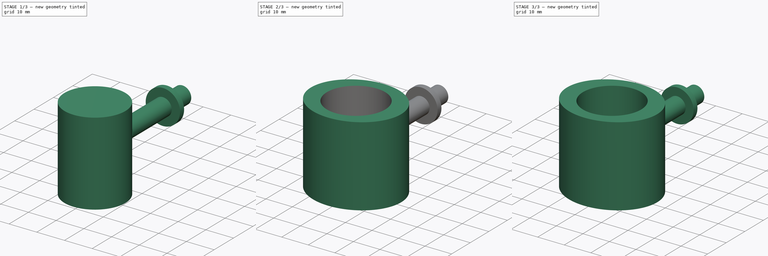
[diagram: build sequence overview — one tinted view per stage of 3, left to right]
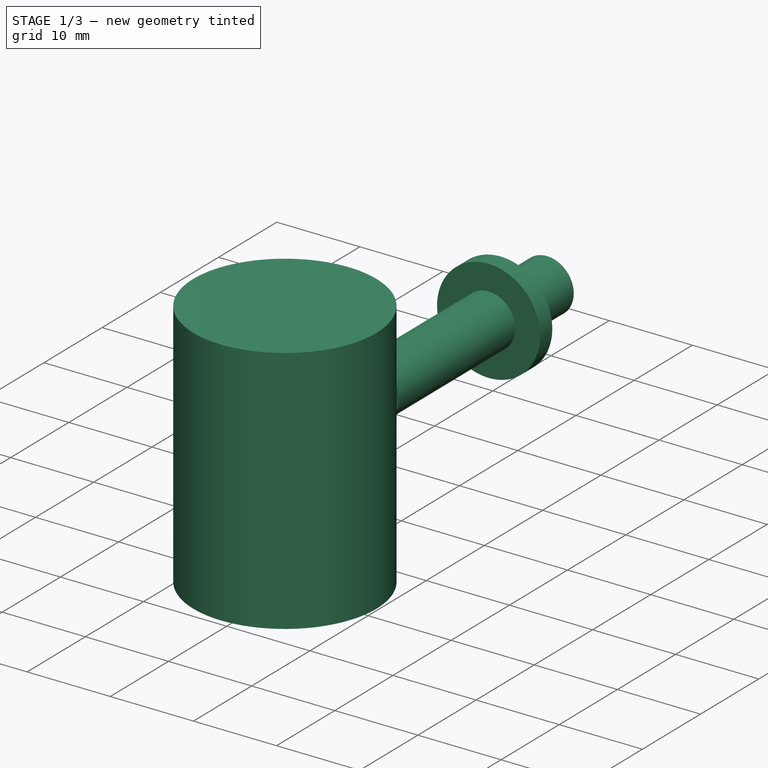
[diagram: stage 1 of 3 — iso view after this stage's code; geometry added in this stage tinted green]
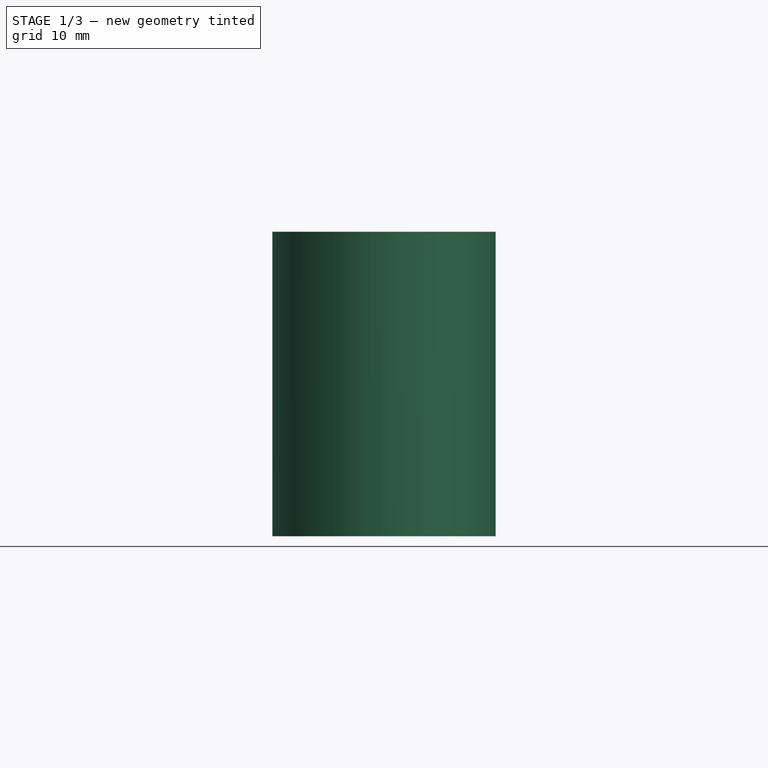
[diagram: stage 1 of 3 — front view after this stage's code; geometry added in this stage tinted green]
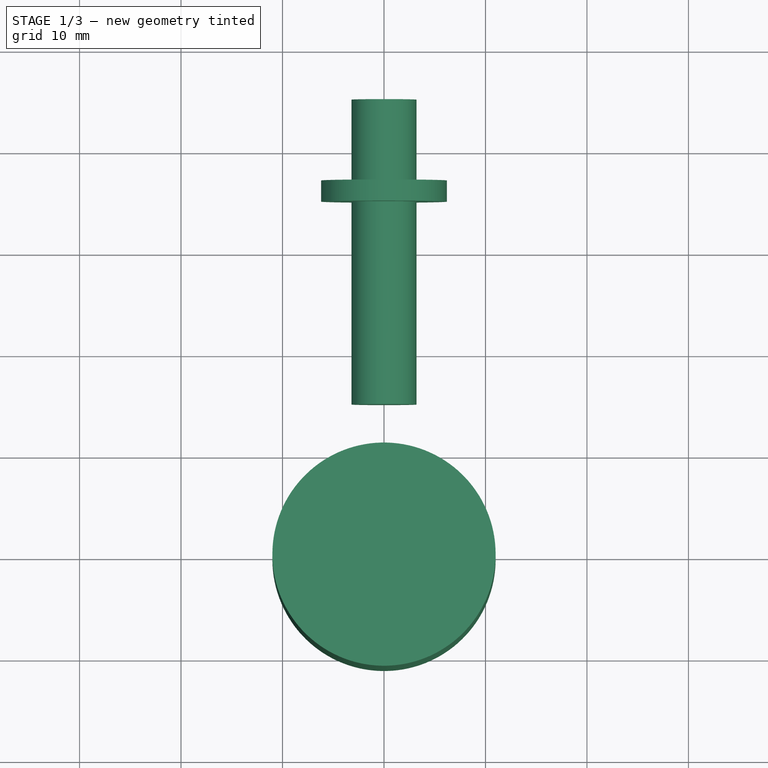
[diagram: stage 1 of 3 — top view after this stage's code; geometry added in this stage tinted green]
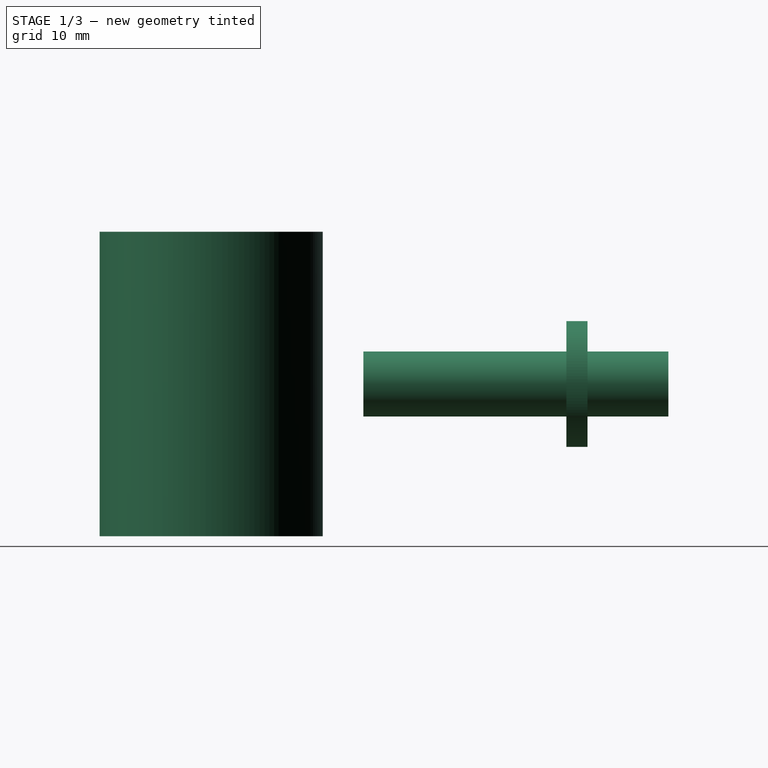
[diagram: stage 1 of 3 — right view after this stage's code; geometry added in this stage tinted green]
FCSTD DOCUMENT  (FreeCAD 0.18.3R)
Label: sidemount
License: All rights reserved
LicenseURL: http://en.wikipedia.org/wiki/All_rights_reserved
objects: Part::Part2DObjectPython×2, Part::Extrusion×2, Part::Cut×1, Sketcher::SketchObject×1, Part::Revolution×1, Part::MultiFuse×1, PartDesign::FeatureBase×1, PartDesign::Body×1
note: 10 computed .brp shape members not serialized (recipe doc carries the construction recipe); baked Part::Feature solids carry a one-line shape summary decoded from their .brp

FEATURE [Part::Extrusion] Extrude001
  Base = -> Circle
  Dir = (0,0,30)
  DirMode = 0
  FaceMakerClass = Part::FaceMakerExtrusion
  LengthFwd = 0
  LengthRev = 0
  Placement = pos=(0,0,0) rot=(0,1,0;3.14159rad)
  Solid = false
  Symmetric = false
FEATURE [Sketcher::SketchObject] Sketch
  MapMode = 5
  Placement = pos=(-15,0,-30) rot=(1,0,0;1.5708rad)
  sketch-geometry (8):
    g0: LineSegment StartX=-20 StartY=11.8 StartZ=0 EndX=0 EndY=11.8 EndZ=0
    g1: LineSegment StartX=-20 StartY=11.8 StartZ=0 EndX=-20 EndY=8.8 EndZ=0
    g2: LineSegment StartX=-20 StartY=8.8 StartZ=0 EndX=-22.0828 EndY=8.8 EndZ=0
    g3: LineSegment StartX=-30.0519 StartY=11.8 StartZ=0 EndX=-22.0828 EndY=11.8 EndZ=0
    g4: LineSegment StartX=-22.0828 StartY=11.8 StartZ=0 EndX=-22.0828 EndY=8.8 EndZ=0
    g5: LineSegment StartX=0 StartY=11.8 StartZ=0 EndX=0 EndY=15 EndZ=0
    g6: LineSegment StartX=0 StartY=15 StartZ=0 EndX=-30.0519 EndY=15 EndZ=0
    g7: LineSegment StartX=-30.0519 StartY=15 StartZ=0 EndX=-30.0519 EndY=11.8 EndZ=0
  constraints (22):
    c: Horizontal(g0)
    c: DistanceY(g-1,g0) = 11.8
    c: Distance(g0) = 20
    c: Vertical(g1)
    c: Coincident(g1,g2)
    c: Horizontal(g2)
    c: Coincident(g1,g0)
    c: Distance(g1) = 3
    c: Horizontal(g3)
    c: Coincident(g3,g4)
    c: Coincident(g4,g2)
    c: Vertical(g4)
    c: Equal(g1,g4)
    c: Coincident(g0,g5)
    c: PointOnObject(g5,g-2)
    c: Vertical(g5)
    c: Coincident(g5,g6)
    c: Horizontal(g6)
    c: Coincident(g6,g7)
    c: Coincident(g7,g3)
    c: Vertical(g7)
    c: DistanceY(g0,g5) = 3.2
FEATURE [Part::Revolution] Revolve
  Angle = 360
  Axis = (-1,0,0)
  AxisLink = -> Sketch [Edge3]
  Base = (-45.0519,3.3e-15,-15)
  FaceMakerClass = Part::FaceMakerBullseye
  Placement = pos=(0,0,0) rot=(0,0,1;4.71239rad)
  Solid = true
  Source = -> Sketch
  Symmetric = false
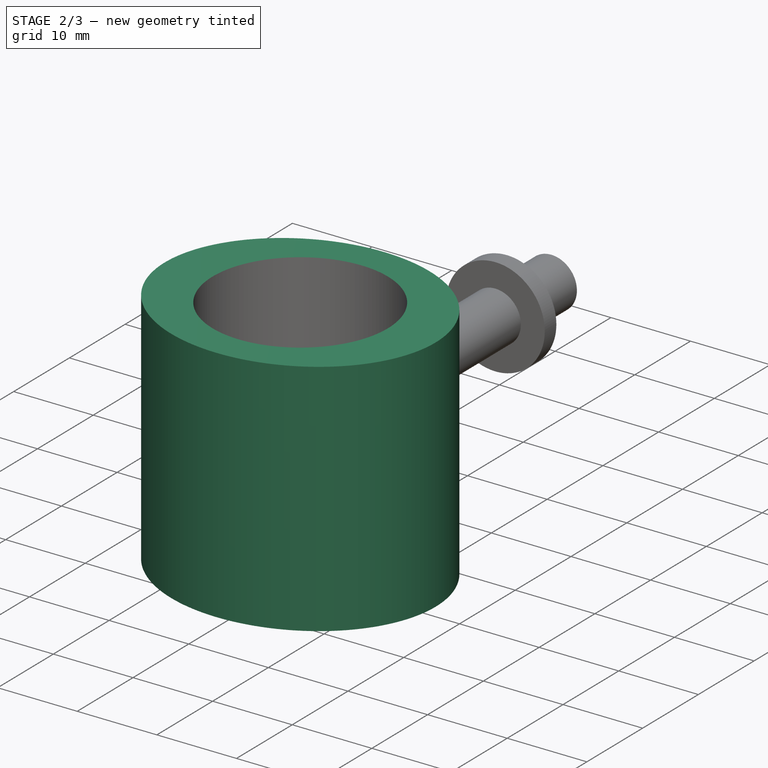
[diagram: stage 2 of 3 — iso view after this stage's code; geometry added in this stage tinted green]
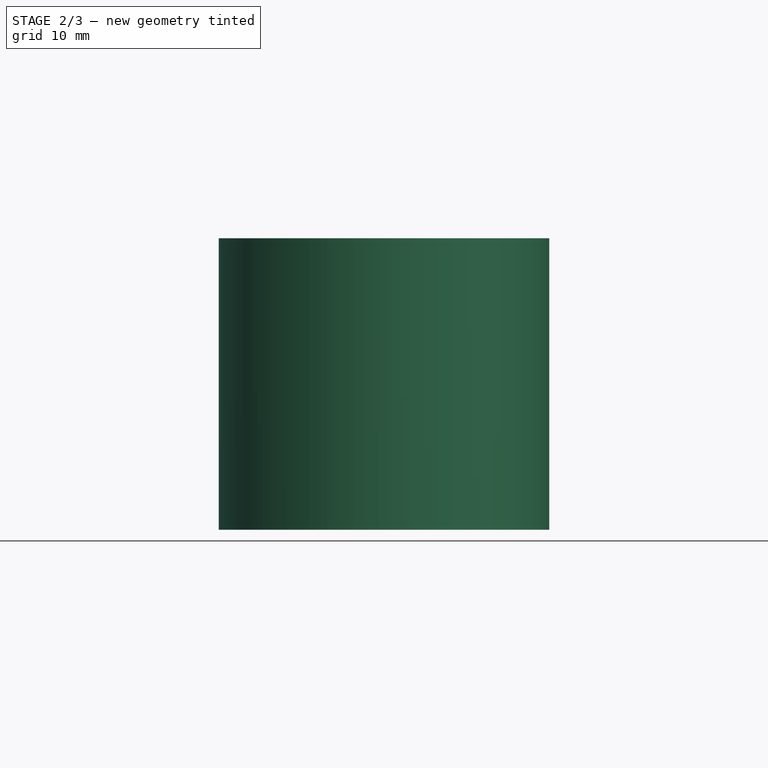
[diagram: stage 2 of 3 — front view after this stage's code; geometry added in this stage tinted green]
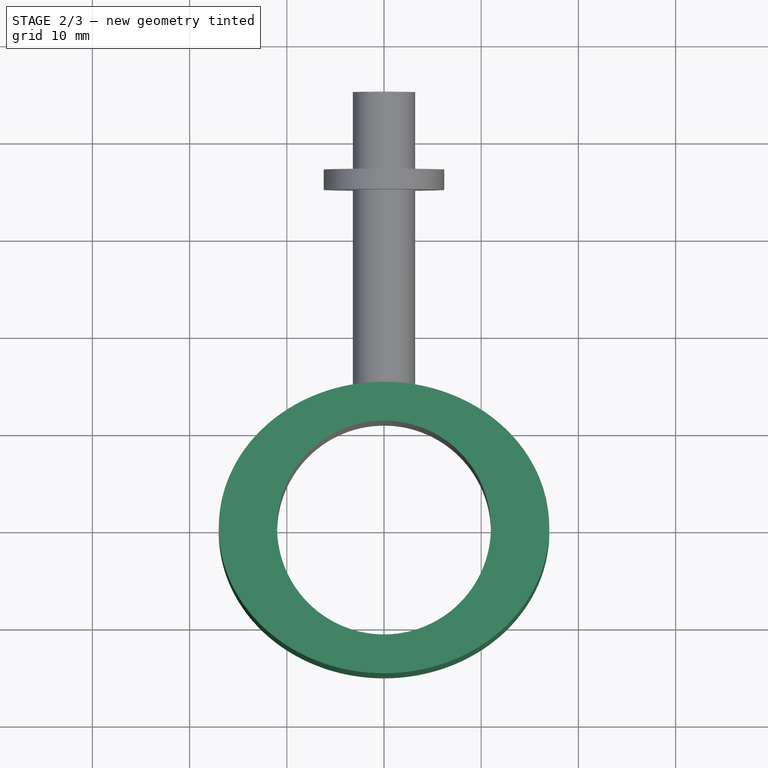
[diagram: stage 2 of 3 — top view after this stage's code; geometry added in this stage tinted green]
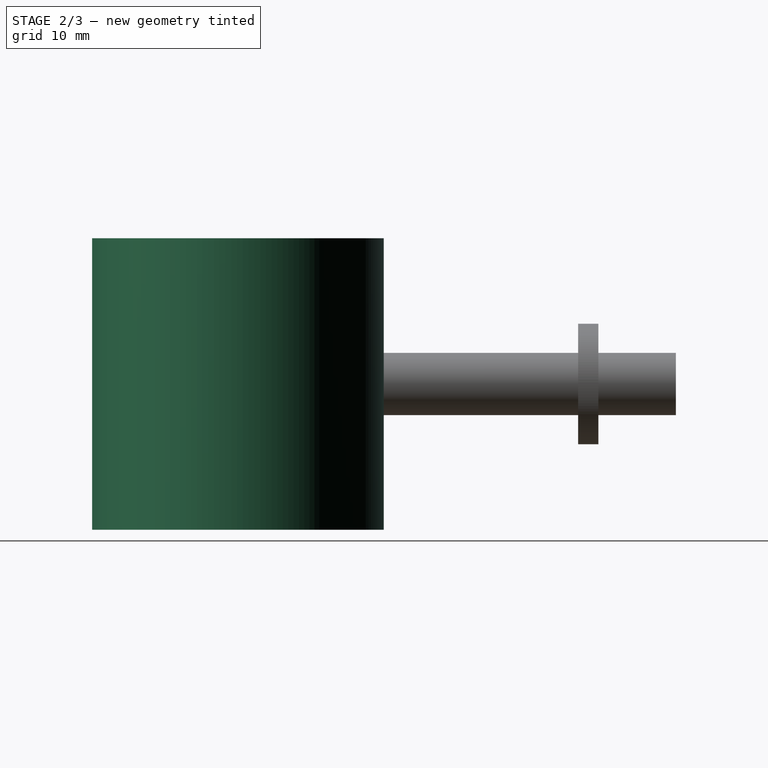
[diagram: stage 2 of 3 — right view after this stage's code; geometry added in this stage tinted green]
FEATURE [Part::Part2DObjectPython] Ellipse  # Draft 2D object (typed FeaturePython)
  FirstAngle = 0
  LastAngle = 0
  MajorRadius = 17
  MakeFace = true
  MapMode = 5
  MinorRadius = 15
FEATURE [Part::Part2DObjectPython] Circle  label="hole"  # Draft 2D object (typed FeaturePython)
  FirstAngle = 0
  LastAngle = 0
  MakeFace = true
  MapMode = 5
  Radius = 11
FEATURE [Part::Extrusion] Extrude
  Base = -> Ellipse
  Dir = (0,0,30)
  DirMode = 0
  FaceMakerClass = Part::FaceMakerExtrusion
  LengthFwd = 0
  LengthRev = 0
  Placement = pos=(0,0,0) rot=(0,1,0;3.14159rad)
  Solid = false
  Symmetric = false
FEATURE [Part::Cut] Cut001
  Base = -> Extrude
  Tool = -> Extrude001
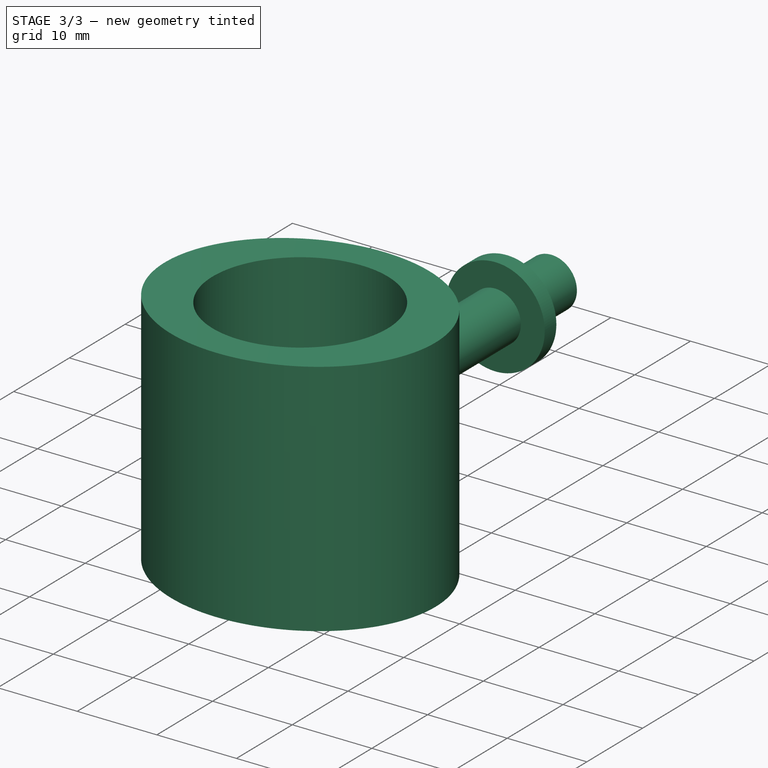
[diagram: stage 3 of 3 — iso view after this stage's code; geometry added in this stage tinted green]
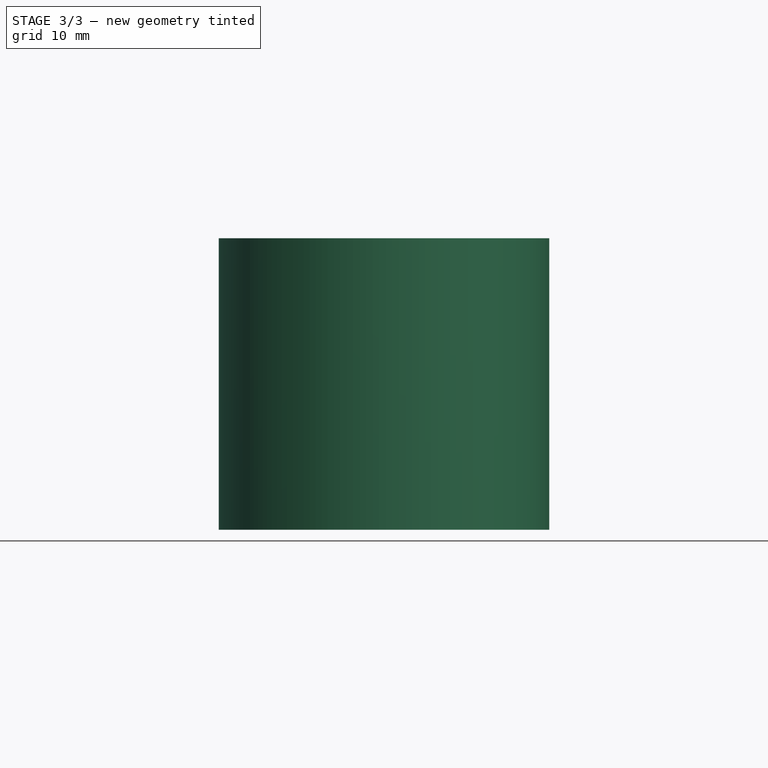
[diagram: stage 3 of 3 — front view after this stage's code; geometry added in this stage tinted green]
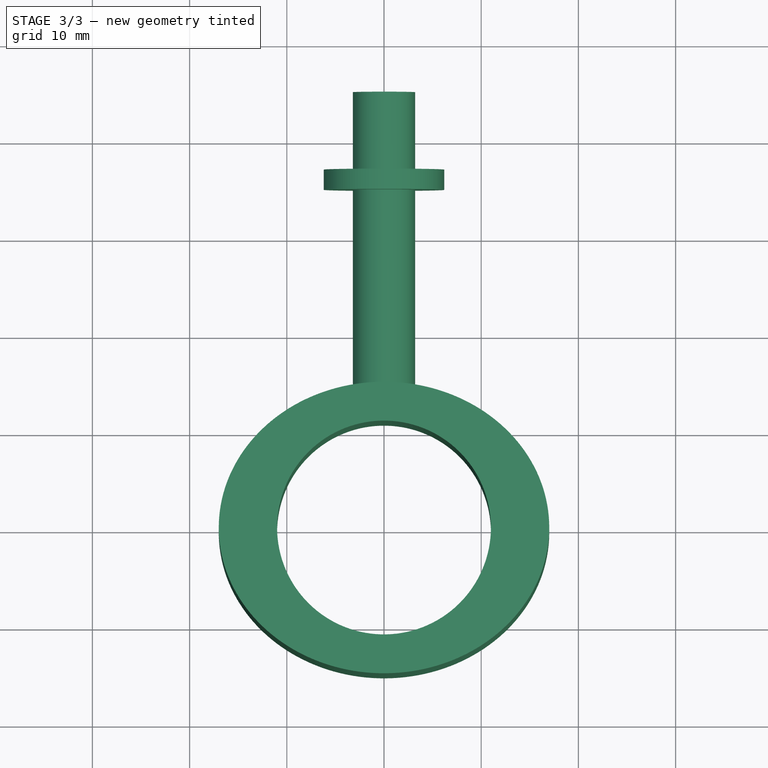
[diagram: stage 3 of 3 — top view after this stage's code; geometry added in this stage tinted green]
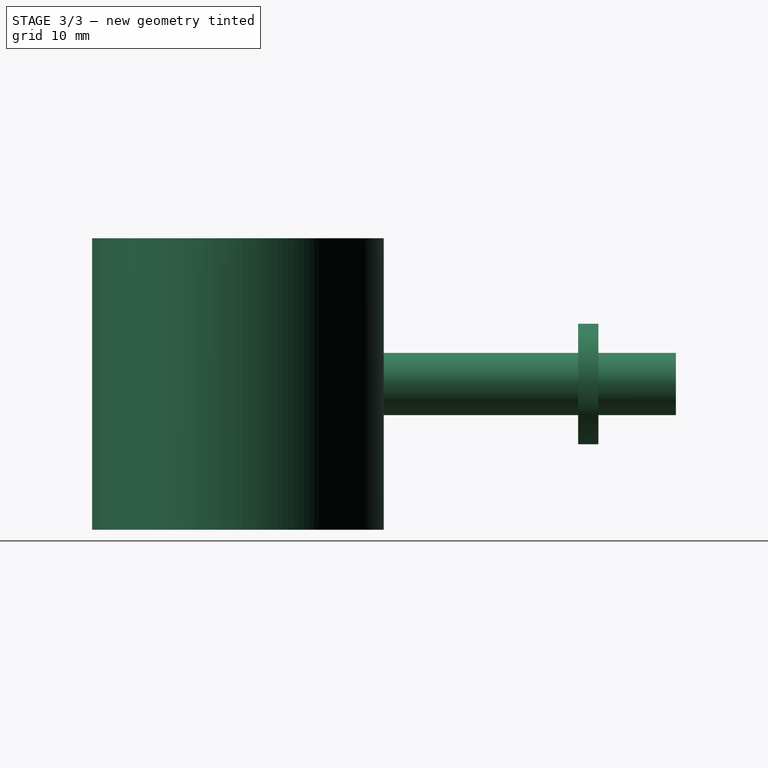
[diagram: stage 3 of 3 — right view after this stage's code; geometry added in this stage tinted green]
FEATURE [Part::MultiFuse] Fusion
  Shapes = -> [Revolve,Cut001]
FEATURE [PartDesign::FeatureBase] BaseFeature
  BaseFeature = -> Fusion
FEATURE [PartDesign::Body] Body
  BaseFeature = -> Fusion
  Group = -> [BaseFeature]
  Origin = -> Origin
  Tip = -> BaseFeature
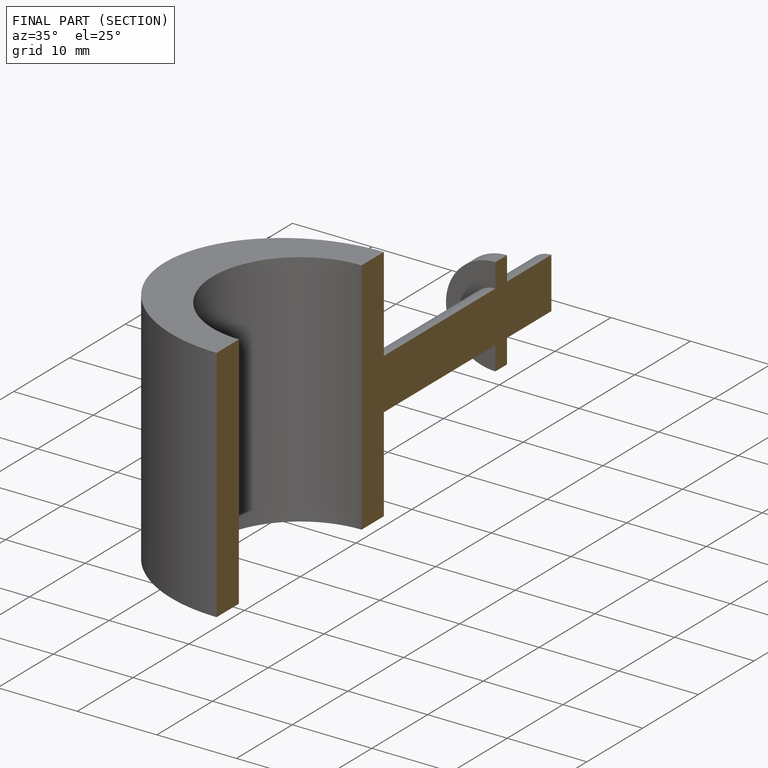
[diagram: finished part — half-section view (interior)]
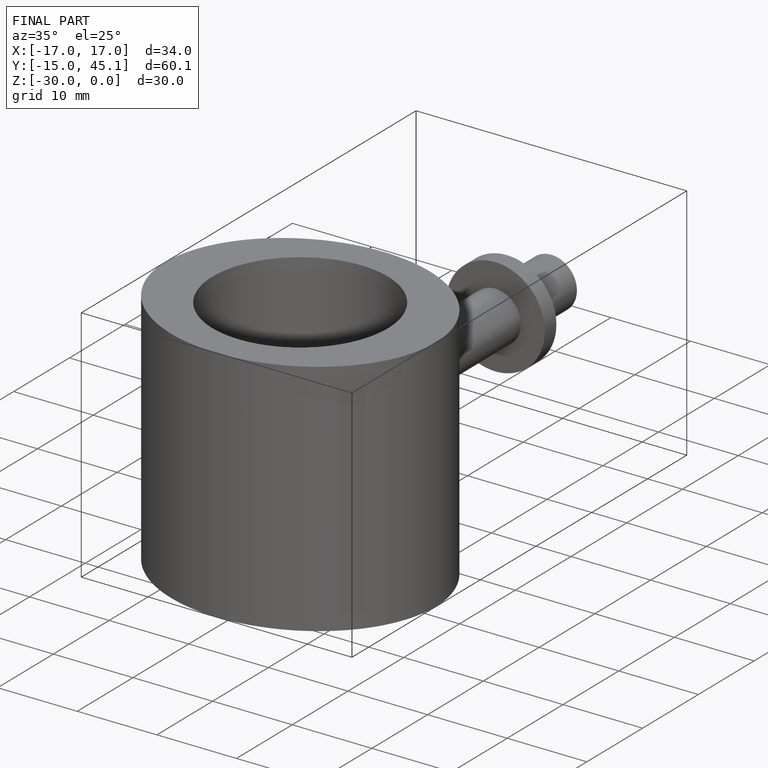
[diagram: finished part — iso view with bounding-box wireframe]
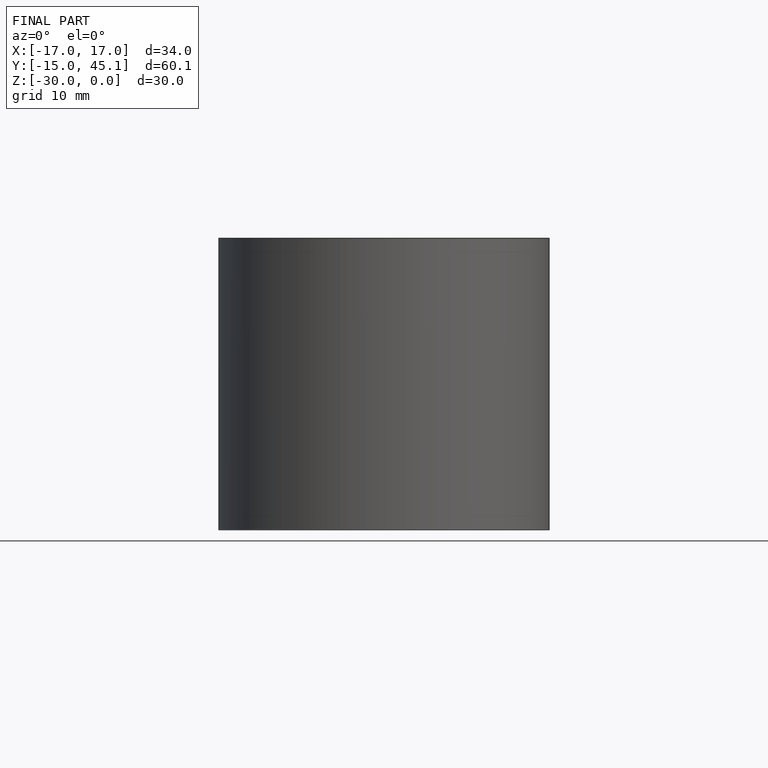
[diagram: finished part — front view with bounding-box wireframe]
